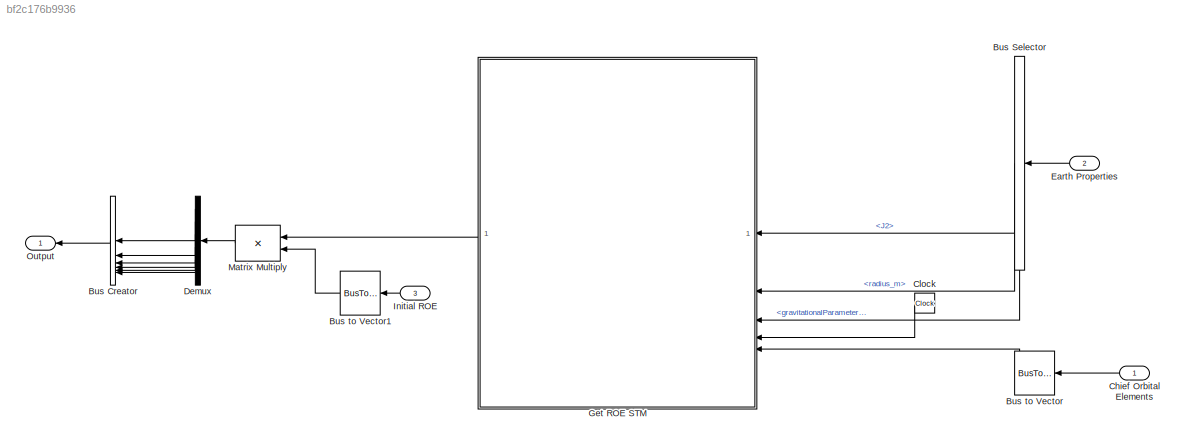
MODEL slx_bf2c176b9936
KIND model
CONFIG AbsTol = auto
CONFIG EnableMultiTasking = off
CONFIG FixedStep = dt
CONFIG MaxStep = auto
CONFIG MinStep = auto
CONFIG RelTol = 1e-3
CONFIG SampleTimeConstraint = Unconstrained
CONFIG SolverName = ode4
CONFIG StartTime = 0.0
CONFIG StopTime = 10.0
BLOCK [BusCreator] Bus Creator
  DisplayOption = bar
  InheritFromInputs = on
  Inputs = 6
  OutDataTypeStr = Bus: eccentricSingularROE
BLOCK [BusSelector] Bus Selector
  OutputSignals = J2,radius_m,gravitationalParameter_m3_s2
BLOCK [BusToVector] Bus to Vector
BLOCK [BusToVector] Bus to Vector1
BLOCK [Inport] Chief Orbital Elements
  OutDataTypeStr = Bus: meanOrbitElements
BLOCK [Clock] Clock
BLOCK [Demux] Demux
  Outputs = 6
BLOCK [Inport] Earth Properties
  OutDataTypeStr = Bus: earthProperties
  Port = 2
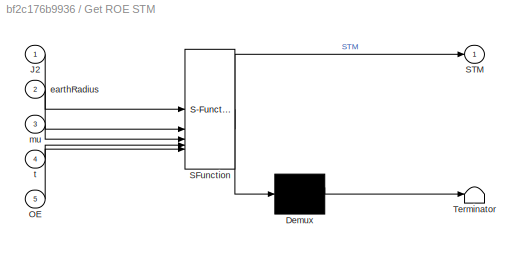
BLOCK [SubSystem] Get ROE STM
  ErrorFcn = Stateflow.Translate.translate
  LibrarySourceBlock = simulink/User-Defined\nFunctions/MATLAB Function
  PermitHierarchicalResolution = ExplicitOnly
  SFBlockType = MATLAB Function
  TreatAsAtomicUnit = on
BLOCK [Demux] Get ROE STM/ Demux 
  Outputs = 1
BLOCK [S-Function] Get ROE STM/ SFunction 
  EnableBusSupport = on
  FunctionName = sf_sfun
  PortCounts = [5 2]
  SFcnIsStateOwnerBlock = off
  SFunctionDeploymentMode = off
  Tag = Stateflow S-Function 2
BLOCK [Terminator] Get ROE STM/ Terminator 
BLOCK [Inport] Get ROE STM/J2
BLOCK [Inport] Get ROE STM/OE
  Port = 5
BLOCK [Outport] Get ROE STM/STM
BLOCK [Inport] Get ROE STM/earthRadius
  Port = 2
BLOCK [Inport] Get ROE STM/mu
  Port = 3
BLOCK [Inport] Get ROE STM/t
  Port = 4
BLOCK [Inport] Initial ROE
  OutDataTypeStr = Bus: eccentricSingularROE
  Port = 3
BLOCK [Product] Matrix Multiply
  Multiplication = Matrix(*)
BLOCK [Outport] Output
  OutDataTypeStr = Bus: eccentricSingularROE
LINE Bus Creator:1 -> Output:1
LINE Bus Selector:1 -> Get ROE STM:1
LINE Bus Selector:2 -> Get ROE STM:2
LINE Bus Selector:3 -> Get ROE STM:3
LINE Bus to Vector1:1 -> Matrix Multiply:2
LINE Bus to Vector:1 -> Get ROE STM:5
LINE Chief Orbital Elements:1 -> Bus to Vector:1
LINE Clock:1 -> Get ROE STM:4
LINE Demux:1 -> Bus Creator:1
LINE Demux:2 -> Bus Creator:2
LINE Demux:3 -> Bus Creator:3
LINE Demux:4 -> Bus Creator:4
LINE Demux:5 -> Bus Creator:5
LINE Demux:6 -> Bus Creator:6
LINE Earth Properties:1 -> Bus Selector:1
LINE Get ROE STM:1 -> Matrix Multiply:1
LINE Initial ROE:1 -> Bus to Vector1:1
LINE Matrix Multiply:1 -> Demux:1
CHART Get ROE STM states=1 transitions=1
  STATE_LABEL 'eML_blk_kernel()'
  STATE_LABEL 'SCRIPT:\nfunction STM = computeEccentricROE_STM(J2,earthRadius,mu,t,OE)\nSTM = computeEccentricROE_STM(OE,J2,earthRadius,mu,t);\nend\n'
CHART  states=0 transitions=0
